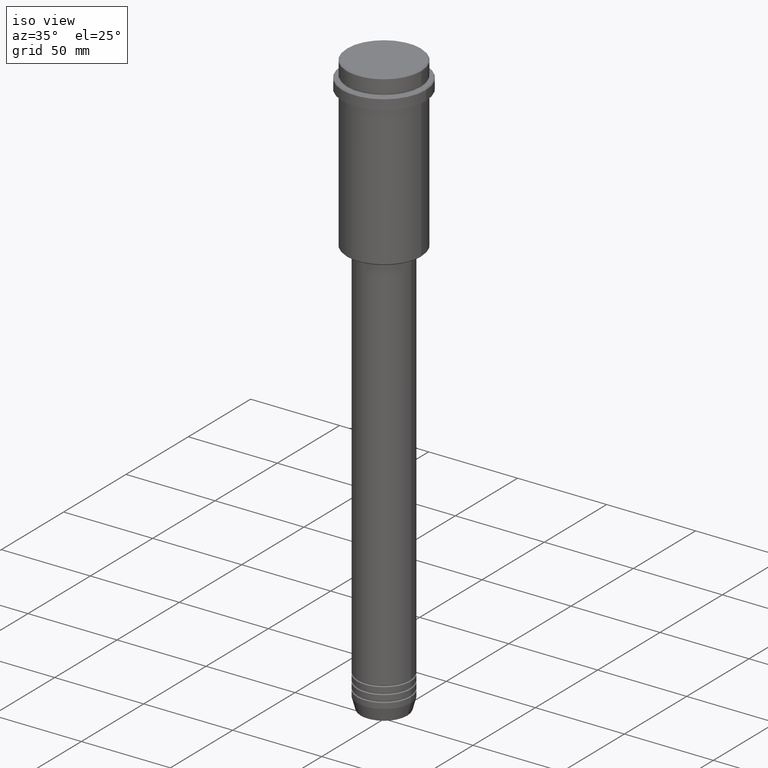
[diagram: clean part render]
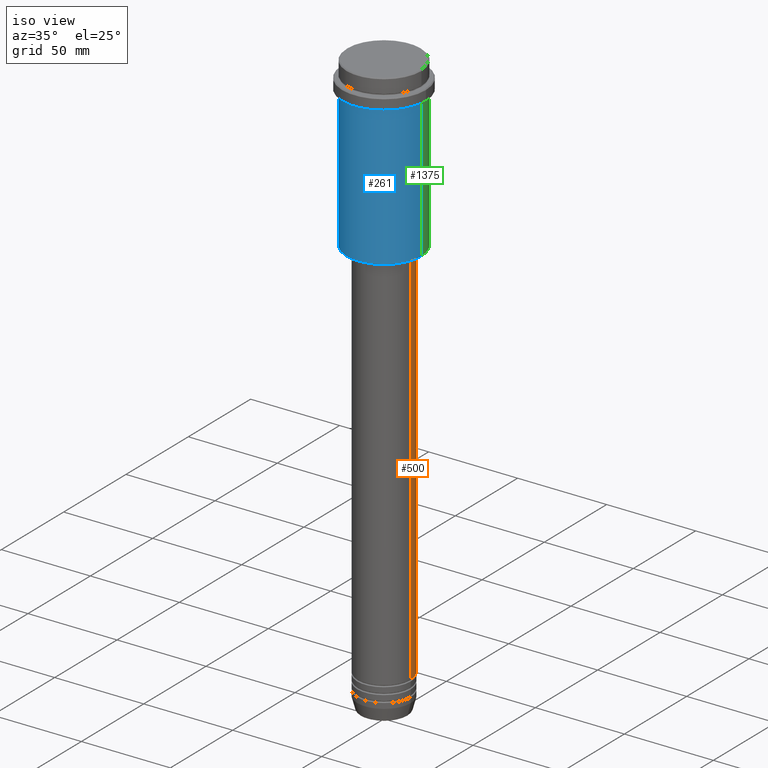
[diagram: same view with three faces highlighted in distinct colors, each labeled with its STEP entity id]
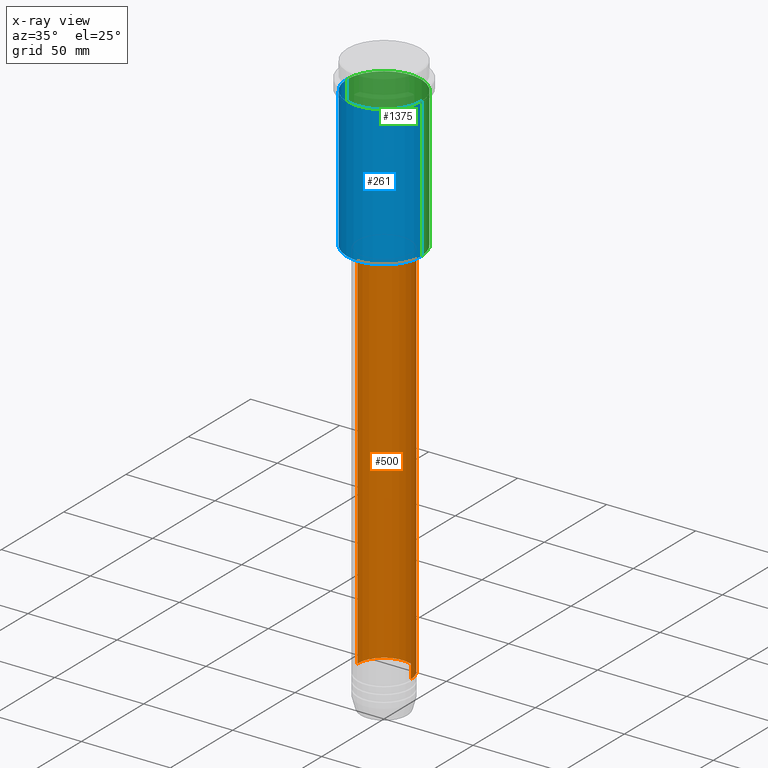
[diagram: x-ray of the same camera — body ghosted, the three highlighted faces saturated]
A machine part, iso view with three faces highlighted in distinct colors.
The next image is the same camera in x-ray (body ghosted, the three faces saturated) — at least one of them is partly hidden behind the body in this view.
Their STEP definitions:

[orange] entity #500 — the highlighted cylindrical surface (edge-blend (fillet) strip) has radius 15 mm, axis along (-0, -0, 1).
#27 = CIRCLE ( 'NONE', #749, 15.00000000000000000 ) ;
#85 = DIRECTION ( 'NONE',  ( -0.000000000000000000, -0.000000000000000000, 1.000000000000000000 ) ) ;
#210 = VECTOR ( 'NONE', #1092, 1000.000000000000000 ) ;
#219 = FACE_OUTER_BOUND ( 'NONE', #1141, .T. ) ;
#221 = DIRECTION ( 'NONE',  ( -0.000000000000000000, -0.000000000000000000, 1.000000000000000000 ) ) ;
#265 = EDGE_CURVE ( 'NONE', #917, #430, #1417, .T. ) ;
#266 = CARTESIAN_POINT ( 'NONE',  ( -15.00000000000000000, 1.836970198721029589E-15, -310.9999999999998863 ) ) ;
#314 = DIRECTION ( 'NONE',  ( 1.000000000000000000, 0.000000000000000000, 0.000000000000000000 ) ) ;
#326 = CARTESIAN_POINT ( 'NONE',  ( 0.000000000000000000, 0.000000000000000000, 0.000000000000000000 ) ) ;
#344 = VERTEX_POINT ( 'NONE', #1244 ) ;
#347 = EDGE_CURVE ( 'NONE', #917, #1335, #1345, .T. ) ;
#430 = VERTEX_POINT ( 'NONE', #266 ) ;
#457 = LINE ( 'NONE', #656, #210 ) ;
#483 = AXIS2_PLACEMENT_3D ( 'NONE', #326, #1412, #314 ) ;
#493 = ORIENTED_EDGE ( 'NONE', *, *, #265, .T. ) ;
#500 = ADVANCED_FACE ( 'NONE', ( #219 ), #1292, .T. ) ;
#611 = CARTESIAN_POINT ( 'NONE',  ( 15.00000000000000000, 0.000000000000000000, -95.99999999999994316 ) ) ;
#656 = CARTESIAN_POINT ( 'NONE',  ( -15.00000000000000000, 1.836970198721029589E-15, 0.000000000000000000 ) ) ;
#677 = DIRECTION ( 'NONE',  ( -0.000000000000000000, -0.000000000000000000, 1.000000000000000000 ) ) ;
#679 = CARTESIAN_POINT ( 'NONE',  ( 15.00000000000000000, 0.000000000000000000, -310.9999999999998863 ) ) ;
#681 = CARTESIAN_POINT ( 'NONE',  ( 15.00000000000000000, 0.000000000000000000, 0.000000000000000000 ) ) ;
#723 = EDGE_CURVE ( 'NONE', #1335, #344, #27, .T. ) ;
#749 = AXIS2_PLACEMENT_3D ( 'NONE', #826, #85, #1149 ) ;
#826 = CARTESIAN_POINT ( 'NONE',  ( 0.000000000000000000, 0.000000000000000000, -95.99999999999994316 ) ) ;
#914 = ORIENTED_EDGE ( 'NONE', *, *, #347, .F. ) ;
#917 = VERTEX_POINT ( 'NONE', #679 ) ;
#920 = AXIS2_PLACEMENT_3D ( 'NONE', #1408, #221, #1320 ) ;
#1092 = DIRECTION ( 'NONE',  ( -0.000000000000000000, -0.000000000000000000, 1.000000000000000000 ) ) ;
#1094 = ORIENTED_EDGE ( 'NONE', *, *, #723, .F. ) ;
#1141 = EDGE_LOOP ( 'NONE', ( #493, #1148, #1094, #914 ) ) ;
#1148 = ORIENTED_EDGE ( 'NONE', *, *, #1150, .T. ) ;
#1149 = DIRECTION ( 'NONE',  ( 1.000000000000000000, 0.000000000000000000, 0.000000000000000000 ) ) ;
#1150 = EDGE_CURVE ( 'NONE', #430, #344, #457, .T. ) ;
#1244 = CARTESIAN_POINT ( 'NONE',  ( -15.00000000000000000, 1.836970198721029589E-15, -95.99999999999994316 ) ) ;
#1292 = CYLINDRICAL_SURFACE ( 'NONE', #483, 15.00000000000000000 ) ;
#1320 = DIRECTION ( 'NONE',  ( 1.000000000000000000, 0.000000000000000000, 0.000000000000000000 ) ) ;
#1335 = VERTEX_POINT ( 'NONE', #611 ) ;
#1345 = LINE ( 'NONE', #681, #1367 ) ;
#1367 = VECTOR ( 'NONE', #677, 1000.000000000000000 ) ;
#1408 = CARTESIAN_POINT ( 'NONE',  ( 0.000000000000000000, 0.000000000000000000, -310.9999999999998863 ) ) ;
#1412 = DIRECTION ( 'NONE',  ( -0.000000000000000000, -0.000000000000000000, 1.000000000000000000 ) ) ;
#1417 = CIRCLE ( 'NONE', #920, 15.00000000000000000 ) ;

[blue] entity #261 — the highlighted cylindrical surface (partial cylindrical patch) has radius 21 mm, axis along (-0, -0, 1).
#5 = VECTOR ( 'NONE', #1115, 1000.000000000000000 ) ;
#58 = EDGE_CURVE ( 'NONE', #672, #453, #1366, .T. ) ;
#66 = CARTESIAN_POINT ( 'NONE',  ( 20.99999999999999645, 0.000000000000000000, -94.49999999999995737 ) ) ;
#67 = DIRECTION ( 'NONE',  ( -0.000000000000000000, -0.000000000000000000, 1.000000000000000000 ) ) ;
#76 = DIRECTION ( 'NONE',  ( 1.000000000000000000, 0.000000000000000000, 0.000000000000000000 ) ) ;
#77 = AXIS2_PLACEMENT_3D ( 'NONE', #1407, #194, #860 ) ;
#96 = EDGE_LOOP ( 'NONE', ( #114, #945, #385, #1113 ) ) ;
#114 = ORIENTED_EDGE ( 'NONE', *, *, #778, .F. ) ;
#127 = FACE_OUTER_BOUND ( 'NONE', #96, .T. ) ;
#194 = DIRECTION ( 'NONE',  ( -0.000000000000000000, -0.000000000000000000, 1.000000000000000000 ) ) ;
#247 = CARTESIAN_POINT ( 'NONE',  ( 20.99999999999999645, 0.000000000000000000, 0.000000000000000000 ) ) ;
#261 = ADVANCED_FACE ( 'NONE', ( #127 ), #318, .T. ) ;
#263 = VERTEX_POINT ( 'NONE', #759 ) ;
#318 = CYLINDRICAL_SURFACE ( 'NONE', #544, 20.99999999999999645 ) ;
#385 = ORIENTED_EDGE ( 'NONE', *, *, #1198, .T. ) ;
#450 = LINE ( 'NONE', #247, #5 ) ;
#453 = VERTEX_POINT ( 'NONE', #781 ) ;
#478 = CARTESIAN_POINT ( 'NONE',  ( -20.99999999999999645, 2.571758278209441267E-15, -16.00000000000000355 ) ) ;
#544 = AXIS2_PLACEMENT_3D ( 'NONE', #752, #885, #878 ) ;
#613 = CARTESIAN_POINT ( 'NONE',  ( 0.000000000000000000, 0.000000000000000000, -16.00000000000000355 ) ) ;
#618 = LINE ( 'NONE', #844, #1120 ) ;
#672 = VERTEX_POINT ( 'NONE', #478 ) ;
#752 = CARTESIAN_POINT ( 'NONE',  ( 0.000000000000000000, 0.000000000000000000, 0.000000000000000000 ) ) ;
#759 = CARTESIAN_POINT ( 'NONE',  ( -20.99999999999999645, 2.571758278209441267E-15, -94.49999999999995737 ) ) ;
#778 = EDGE_CURVE ( 'NONE', #263, #672, #618, .T. ) ;
#781 = CARTESIAN_POINT ( 'NONE',  ( 20.99999999999999645, 0.000000000000000000, -16.00000000000000355 ) ) ;
#844 = CARTESIAN_POINT ( 'NONE',  ( -20.99999999999999645, 2.571758278209441267E-15, 0.000000000000000000 ) ) ;
#860 = DIRECTION ( 'NONE',  ( -1.000000000000000000, 0.000000000000000000, 0.000000000000000000 ) ) ;
#878 = DIRECTION ( 'NONE',  ( 1.000000000000000000, 0.000000000000000000, 0.000000000000000000 ) ) ;
#885 = DIRECTION ( 'NONE',  ( -0.000000000000000000, -0.000000000000000000, 1.000000000000000000 ) ) ;
#945 = ORIENTED_EDGE ( 'NONE', *, *, #1015, .T. ) ;
#1015 = EDGE_CURVE ( 'NONE', #263, #1265, #1077, .T. ) ;
#1056 = DIRECTION ( 'NONE',  ( -0.000000000000000000, -0.000000000000000000, 1.000000000000000000 ) ) ;
#1077 = CIRCLE ( 'NONE', #77, 20.99999999999999645 ) ;
#1113 = ORIENTED_EDGE ( 'NONE', *, *, #58, .F. ) ;
#1115 = DIRECTION ( 'NONE',  ( -0.000000000000000000, -0.000000000000000000, 1.000000000000000000 ) ) ;
#1120 = VECTOR ( 'NONE', #1056, 1000.000000000000000 ) ;
#1198 = EDGE_CURVE ( 'NONE', #1265, #453, #450, .T. ) ;
#1231 = AXIS2_PLACEMENT_3D ( 'NONE', #613, #67, #76 ) ;
#1265 = VERTEX_POINT ( 'NONE', #66 ) ;
#1366 = CIRCLE ( 'NONE', #1231, 20.99999999999999645 ) ;
#1407 = CARTESIAN_POINT ( 'NONE',  ( 0.000000000000000000, 0.000000000000000000, -94.49999999999995737 ) ) ;

[green] entity #1375 — the highlighted cylindrical surface (partial cylindrical patch) has radius 21 mm, axis along (-0, -0, 1).
#5 = VECTOR ( 'NONE', #1115, 1000.000000000000000 ) ;
#66 = CARTESIAN_POINT ( 'NONE',  ( 20.99999999999999645, 0.000000000000000000, -94.49999999999995737 ) ) ;
#132 = DIRECTION ( 'NONE',  ( 1.000000000000000000, 0.000000000000000000, 0.000000000000000000 ) ) ;
#204 = DIRECTION ( 'NONE',  ( 1.000000000000000000, 0.000000000000000000, 0.000000000000000000 ) ) ;
#213 = DIRECTION ( 'NONE',  ( -1.000000000000000000, 0.000000000000000000, 0.000000000000000000 ) ) ;
#222 = ORIENTED_EDGE ( 'NONE', *, *, #1198, .F. ) ;
#247 = CARTESIAN_POINT ( 'NONE',  ( 20.99999999999999645, 0.000000000000000000, 0.000000000000000000 ) ) ;
#263 = VERTEX_POINT ( 'NONE', #759 ) ;
#279 = AXIS2_PLACEMENT_3D ( 'NONE', #867, #1413, #132 ) ;
#294 = AXIS2_PLACEMENT_3D ( 'NONE', #882, #1091, #213 ) ;
#400 = ORIENTED_EDGE ( 'NONE', *, *, #1128, .F. ) ;
#450 = LINE ( 'NONE', #247, #5 ) ;
#453 = VERTEX_POINT ( 'NONE', #781 ) ;
#461 = ORIENTED_EDGE ( 'NONE', *, *, #537, .T. ) ;
#478 = CARTESIAN_POINT ( 'NONE',  ( -20.99999999999999645, 2.571758278209441267E-15, -16.00000000000000355 ) ) ;
#537 = EDGE_CURVE ( 'NONE', #1265, #263, #1298, .T. ) ;
#568 = CYLINDRICAL_SURFACE ( 'NONE', #279, 20.99999999999999645 ) ;
#618 = LINE ( 'NONE', #844, #1120 ) ;
#623 = AXIS2_PLACEMENT_3D ( 'NONE', #743, #1177, #204 ) ;
#644 = CIRCLE ( 'NONE', #623, 20.99999999999999645 ) ;
#672 = VERTEX_POINT ( 'NONE', #478 ) ;
#743 = CARTESIAN_POINT ( 'NONE',  ( 0.000000000000000000, 0.000000000000000000, -16.00000000000000355 ) ) ;
#759 = CARTESIAN_POINT ( 'NONE',  ( -20.99999999999999645, 2.571758278209441267E-15, -94.49999999999995737 ) ) ;
#778 = EDGE_CURVE ( 'NONE', #263, #672, #618, .T. ) ;
#781 = CARTESIAN_POINT ( 'NONE',  ( 20.99999999999999645, 0.000000000000000000, -16.00000000000000355 ) ) ;
#823 = EDGE_LOOP ( 'NONE', ( #461, #1398, #400, #222 ) ) ;
#844 = CARTESIAN_POINT ( 'NONE',  ( -20.99999999999999645, 2.571758278209441267E-15, 0.000000000000000000 ) ) ;
#867 = CARTESIAN_POINT ( 'NONE',  ( 0.000000000000000000, 0.000000000000000000, 0.000000000000000000 ) ) ;
#882 = CARTESIAN_POINT ( 'NONE',  ( 0.000000000000000000, 0.000000000000000000, -94.49999999999995737 ) ) ;
#1056 = DIRECTION ( 'NONE',  ( -0.000000000000000000, -0.000000000000000000, 1.000000000000000000 ) ) ;
#1091 = DIRECTION ( 'NONE',  ( -0.000000000000000000, -0.000000000000000000, 1.000000000000000000 ) ) ;
#1115 = DIRECTION ( 'NONE',  ( -0.000000000000000000, -0.000000000000000000, 1.000000000000000000 ) ) ;
#1120 = VECTOR ( 'NONE', #1056, 1000.000000000000000 ) ;
#1128 = EDGE_CURVE ( 'NONE', #453, #672, #644, .T. ) ;
#1177 = DIRECTION ( 'NONE',  ( -0.000000000000000000, -0.000000000000000000, 1.000000000000000000 ) ) ;
#1198 = EDGE_CURVE ( 'NONE', #1265, #453, #450, .T. ) ;
#1265 = VERTEX_POINT ( 'NONE', #66 ) ;
#1298 = CIRCLE ( 'NONE', #294, 20.99999999999999645 ) ;
#1311 = FACE_OUTER_BOUND ( 'NONE', #823, .T. ) ;
#1375 = ADVANCED_FACE ( 'NONE', ( #1311 ), #568, .T. ) ;
#1398 = ORIENTED_EDGE ( 'NONE', *, *, #778, .T. ) ;
#1413 = DIRECTION ( 'NONE',  ( -0.000000000000000000, -0.000000000000000000, 1.000000000000000000 ) ) ;